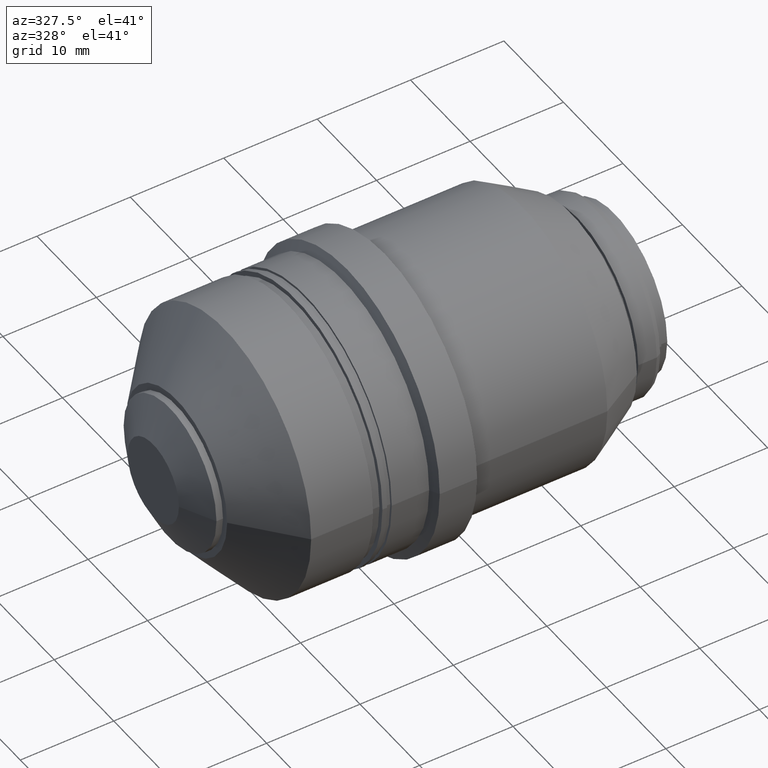
[diagram: clean part render]
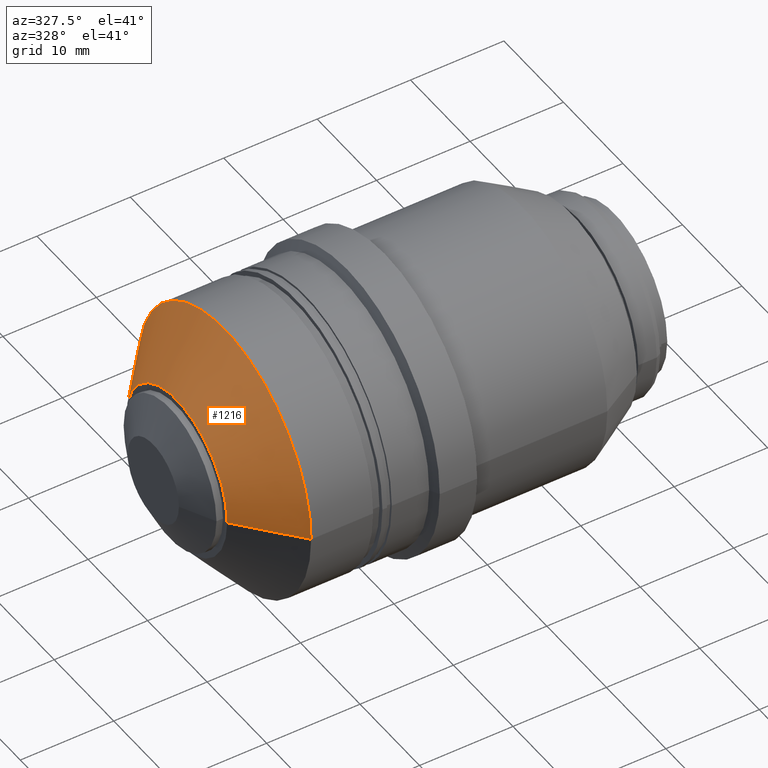
[diagram: same view with one face highlighted and labeled with its STEP entity id]
A machine part, auxiliary view. The second image highlights one B-rep face of the part: STEP entity #1216.
In plain terms, the highlighted conical surface has half-angle 49.25 deg.
Its self-contained STEP definition (entity closure, byte-faithful):
#21 = AXIS2_PLACEMENT_3D ( 'NONE', #224, #632, #617 ) ;
#92 = VERTEX_POINT ( 'NONE', #945 ) ;
#114 = EDGE_CURVE ( 'NONE', #138, #142, #205, .T. ) ;
#123 = CARTESIAN_POINT ( 'NONE',  ( -41.73000000000000398, -3.093507693348589580E-16, 0.000000000000000000 ) ) ;
#138 = VERTEX_POINT ( 'NONE', #420 ) ;
#142 = VERTEX_POINT ( 'NONE', #145 ) ;
#145 = CARTESIAN_POINT ( 'NONE',  ( -41.73000000000000398, 14.50000000000000000, 0.000000000000000000 ) ) ;
#157 = ORIENTED_EDGE ( 'NONE', *, *, #958, .F. ) ;
#171 = CONICAL_SURFACE ( 'NONE', #1006, 14.50000000000000000, 0.8595680336976208036 ) ;
#205 = LINE ( 'NONE', #1257, #286 ) ;
#224 = CARTESIAN_POINT ( 'NONE',  ( -46.89999999999999858, -1.260013928639667961E-15, 0.000000000000000000 ) ) ;
#286 = VECTOR ( 'NONE', #722, 1000.000000000000000 ) ;
#292 = LINE ( 'NONE', #609, #839 ) ;
#315 = CARTESIAN_POINT ( 'NONE',  ( -46.89999999999999858, -8.500000000000000000, 1.408343819019454007E-15 ) ) ;
#420 = CARTESIAN_POINT ( 'NONE',  ( -46.89999999999999858, 8.500000000000000000, 0.000000000000000000 ) ) ;
#486 = VERTEX_POINT ( 'NONE', #315 ) ;
#487 = EDGE_CURVE ( 'NONE', #138, #486, #595, .T. ) ;
#574 = CARTESIAN_POINT ( 'NONE',  ( -41.73000000000000398, -3.093507693348589580E-16, 0.000000000000000000 ) ) ;
#595 = CIRCLE ( 'NONE', #21, 8.500000000000000000 ) ;
#608 = EDGE_CURVE ( 'NONE', #486, #92, #292, .T. ) ;
#609 = CARTESIAN_POINT ( 'NONE',  ( -41.73000000000000398, -14.50000000000000000, 1.775737858763660240E-15 ) ) ;
#617 = DIRECTION ( 'NONE',  ( 0.000000000000000000, 1.000000000000000000, 0.000000000000000000 ) ) ;
#622 = EDGE_LOOP ( 'NONE', ( #842, #890, #157, #1280 ) ) ;
#632 = DIRECTION ( 'NONE',  ( 1.000000000000000000, 0.000000000000000000, 0.000000000000000000 ) ) ;
#707 = AXIS2_PLACEMENT_3D ( 'NONE', #574, #982, #1162 ) ;
#722 = DIRECTION ( 'NONE',  ( 0.6527647697328033960, 0.7575606611986133165, 0.000000000000000000 ) ) ;
#839 = VECTOR ( 'NONE', #1019, 999.9999999999998863 ) ;
#842 = ORIENTED_EDGE ( 'NONE', *, *, #487, .T. ) ;
#848 = FACE_OUTER_BOUND ( 'NONE', #622, .T. ) ;
#890 = ORIENTED_EDGE ( 'NONE', *, *, #608, .T. ) ;
#945 = CARTESIAN_POINT ( 'NONE',  ( -41.73000000000000398, -14.50000000000000000, 1.775737858763660240E-15 ) ) ;
#958 = EDGE_CURVE ( 'NONE', #142, #92, #1285, .T. ) ;
#982 = DIRECTION ( 'NONE',  ( 1.000000000000000000, 0.000000000000000000, 0.000000000000000000 ) ) ;
#1006 = AXIS2_PLACEMENT_3D ( 'NONE', #123, #1258, #1152 ) ;
#1019 = DIRECTION ( 'NONE',  ( 0.6527647697328040621, -0.7575606611986127614, 9.277442388968338506E-17 ) ) ;
#1152 = DIRECTION ( 'NONE',  ( 0.000000000000000000, 1.000000000000000000, 0.000000000000000000 ) ) ;
#1162 = DIRECTION ( 'NONE',  ( 0.000000000000000000, 1.000000000000000000, 0.000000000000000000 ) ) ;
#1216 = ADVANCED_FACE ( 'NONE', ( #848 ), #171, .T. ) ;
#1257 = CARTESIAN_POINT ( 'NONE',  ( -41.73000000000000398, 14.50000000000000000, 0.000000000000000000 ) ) ;
#1258 = DIRECTION ( 'NONE',  ( 1.000000000000000000, 0.000000000000000000, 0.000000000000000000 ) ) ;
#1280 = ORIENTED_EDGE ( 'NONE', *, *, #114, .F. ) ;
#1285 = CIRCLE ( 'NONE', #707, 14.50000000000000000 ) ;